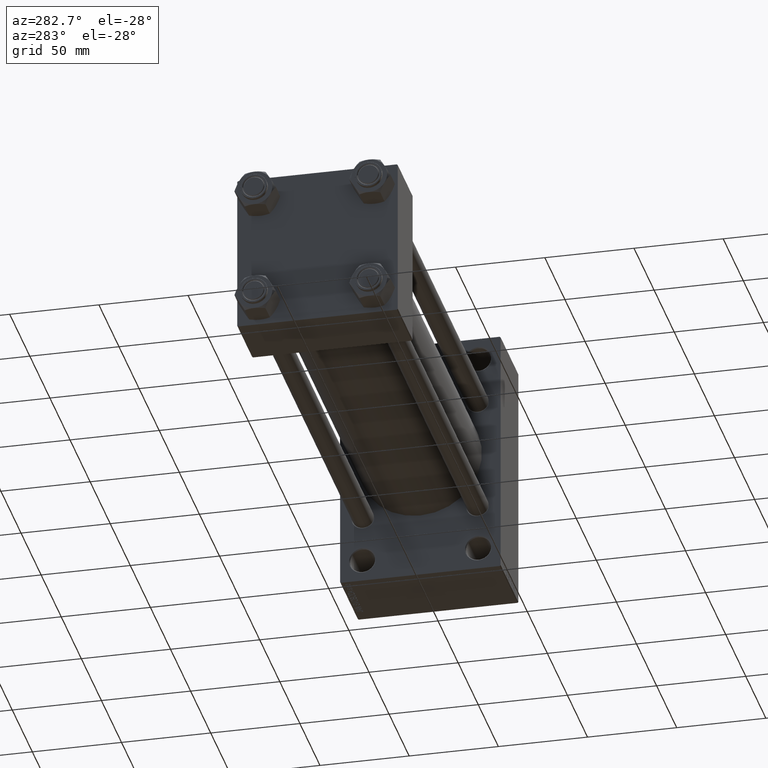
[diagram: clean part render]
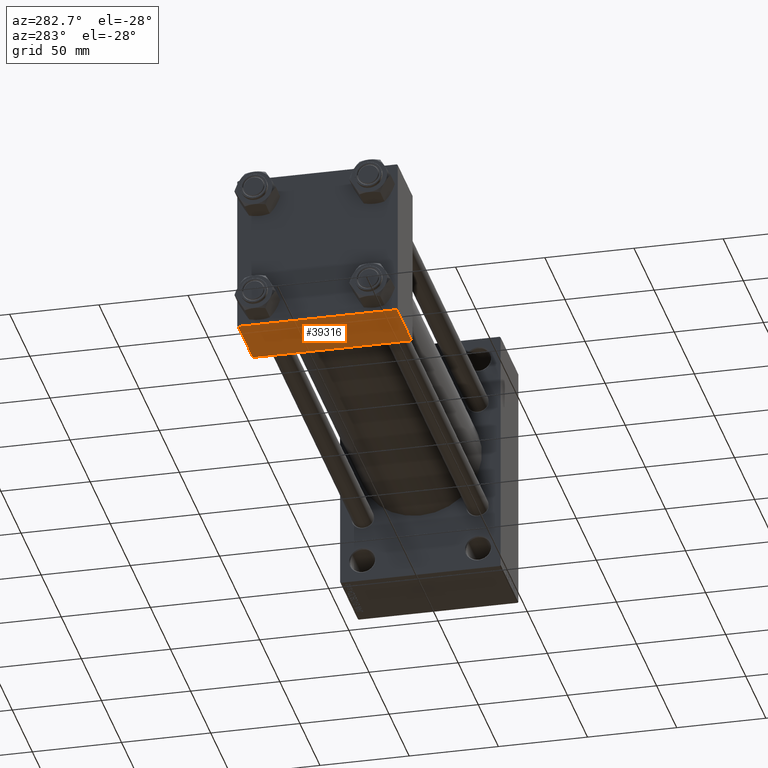
[diagram: same view with one face highlighted and labeled with its STEP entity id]
A machine part, auxiliary view. The second image highlights one B-rep face of the part: STEP entity #39316.
In plain terms, the highlighted planar face has unit normal (0, 0, -1).
Its self-contained STEP definition (entity closure, byte-faithful):
#567 = LINE ( 'NONE', #3426, #45282 ) ;
#1112 = DIRECTION ( 'NONE',  ( 0.000000000000000000, 1.541976423090495880E-16, -1.000000000000000000 ) ) ;
#3024 = DIRECTION ( 'NONE',  ( 1.000000000000000000, 0.000000000000000000, 0.000000000000000000 ) ) ;
#3152 = VERTEX_POINT ( 'NONE', #12899 ) ;
#3426 = CARTESIAN_POINT ( 'NONE',  ( 37.00000000000000000, 44.99999999999998579, -44.99999999999998579 ) ) ;
#4392 = ORIENTED_EDGE ( 'NONE', *, *, #45046, .F. ) ;
#6257 = CARTESIAN_POINT ( 'NONE',  ( 0.000000000000000000, 44.99999999999998579, -44.99999999999998579 ) ) ;
#12554 = DIRECTION ( 'NONE',  ( 0.000000000000000000, 1.000000000000000000, 1.541976423090495880E-16 ) ) ;
#12899 = CARTESIAN_POINT ( 'NONE',  ( 0.000000000000000000, -44.49999999999995737, -45.00000000000000000 ) ) ;
#12922 = ORIENTED_EDGE ( 'NONE', *, *, #18214, .T. ) ;
#13314 = ORIENTED_EDGE ( 'NONE', *, *, #33913, .T. ) ;
#15199 = EDGE_CURVE ( 'NONE', #23644, #28590, #46935, .T. ) ;
#15295 = VECTOR ( 'NONE', #30770, 1000.000000000000000 ) ;
#15747 = AXIS2_PLACEMENT_3D ( 'NONE', #22819, #1112, #12554 ) ;
#16680 = VERTEX_POINT ( 'NONE', #34789 ) ;
#17325 = VECTOR ( 'NONE', #24611, 1000.000000000000000 ) ;
#18214 = EDGE_CURVE ( 'NONE', #16680, #3152, #27931, .T. ) ;
#20568 = LINE ( 'NONE', #6257, #17325 ) ;
#21253 = CARTESIAN_POINT ( 'NONE',  ( 0.000000000000000000, 44.49999999999998579, -44.99999999999998579 ) ) ;
#22819 = CARTESIAN_POINT ( 'NONE',  ( 37.00000000000000000, 44.99999999999998579, -44.99999999999998579 ) ) ;
#23644 = VERTEX_POINT ( 'NONE', #21253 ) ;
#24519 = ORIENTED_EDGE ( 'NONE', *, *, #15199, .T. ) ;
#24611 = DIRECTION ( 'NONE',  ( 0.000000000000000000, -1.000000000000000000, -1.541976423090495633E-16 ) ) ;
#25086 = VECTOR ( 'NONE', #3024, 1000.000000000000000 ) ;
#25370 = DIRECTION ( 'NONE',  ( 0.000000000000000000, -1.000000000000000000, -1.541976423090495633E-16 ) ) ;
#27931 = LINE ( 'NONE', #41528, #15295 ) ;
#28590 = VERTEX_POINT ( 'NONE', #34745 ) ;
#29327 = EDGE_LOOP ( 'NONE', ( #4392, #24519, #13314, #12922 ) ) ;
#30770 = DIRECTION ( 'NONE',  ( -1.000000000000000000, 0.000000000000000000, 0.000000000000000000 ) ) ;
#33913 = EDGE_CURVE ( 'NONE', #28590, #16680, #567, .T. ) ;
#34745 = CARTESIAN_POINT ( 'NONE',  ( 37.00000000000000000, 44.49999999999998579, -44.99999999999998579 ) ) ;
#34789 = CARTESIAN_POINT ( 'NONE',  ( 37.00000000000000000, -44.49999999999995737, -45.00000000000000000 ) ) ;
#38083 = PLANE ( 'NONE',  #15747 ) ;
#39316 = ADVANCED_FACE ( 'NONE', ( #44794 ), #38083, .T. ) ;
#41528 = CARTESIAN_POINT ( 'NONE',  ( 0.000000000000000000, -44.49999999999998579, -45.00000000000000000 ) ) ;
#43338 = CARTESIAN_POINT ( 'NONE',  ( 37.00000000000000000, 44.49999999999998579, -44.99999999999998579 ) ) ;
#44794 = FACE_OUTER_BOUND ( 'NONE', #29327, .T. ) ;
#45046 = EDGE_CURVE ( 'NONE', #23644, #3152, #20568, .T. ) ;
#45282 = VECTOR ( 'NONE', #25370, 1000.000000000000000 ) ;
#46935 = LINE ( 'NONE', #43338, #25086 ) ;